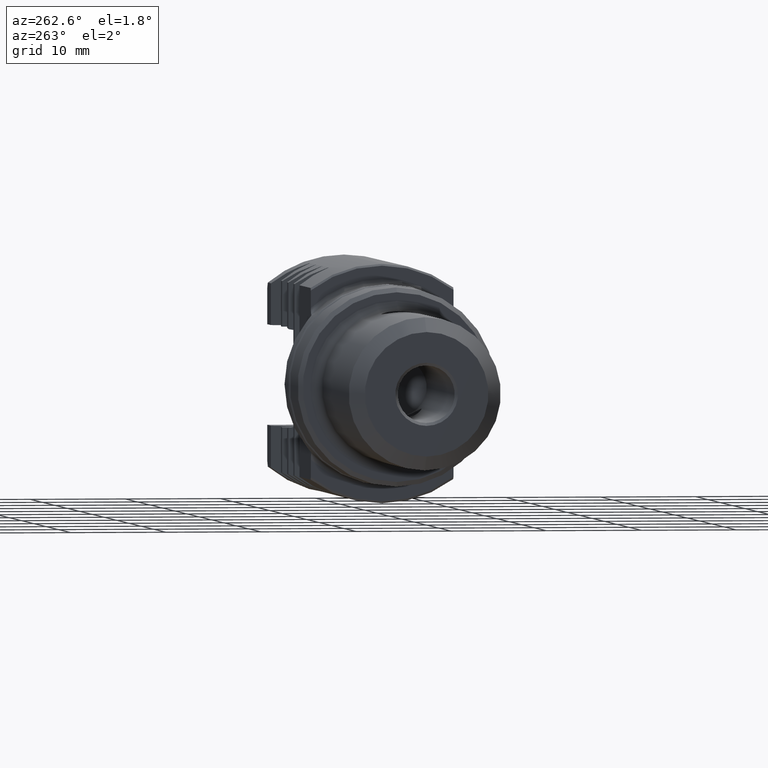
[diagram: clean part render]
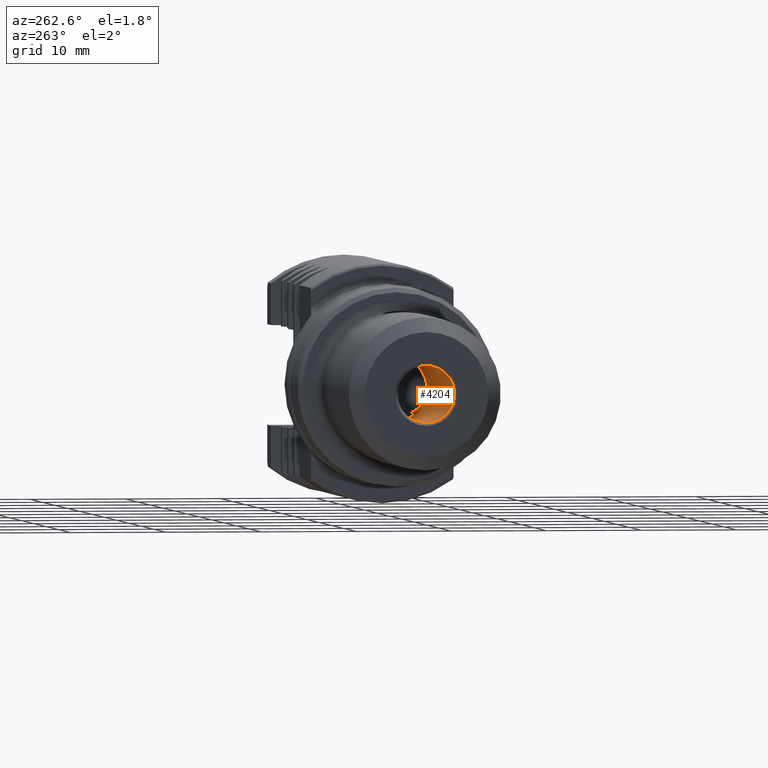
[diagram: same view with one face highlighted and labeled with its STEP entity id]
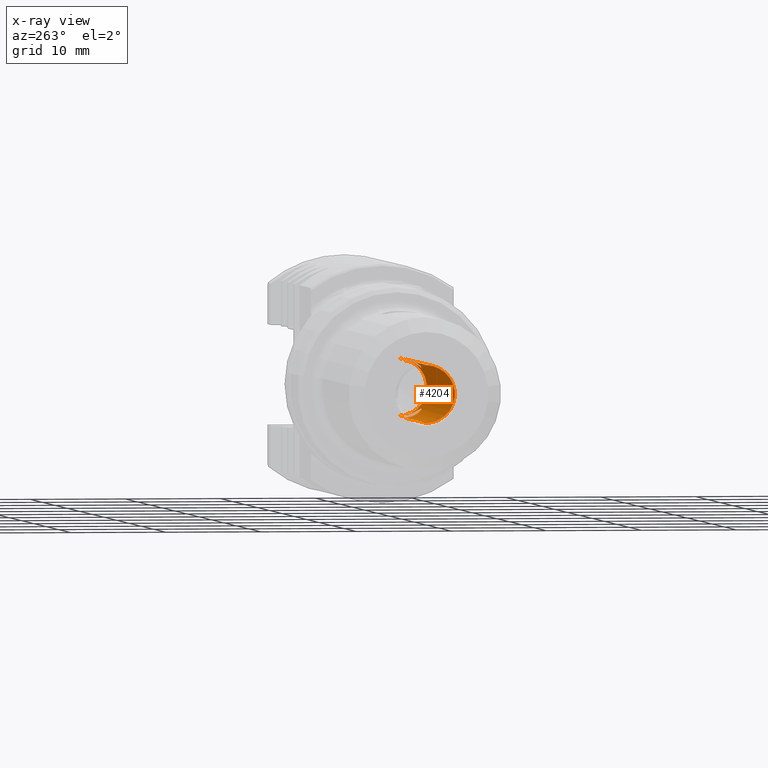
[diagram: x-ray of the same camera — body ghosted, the highlighted face saturated]
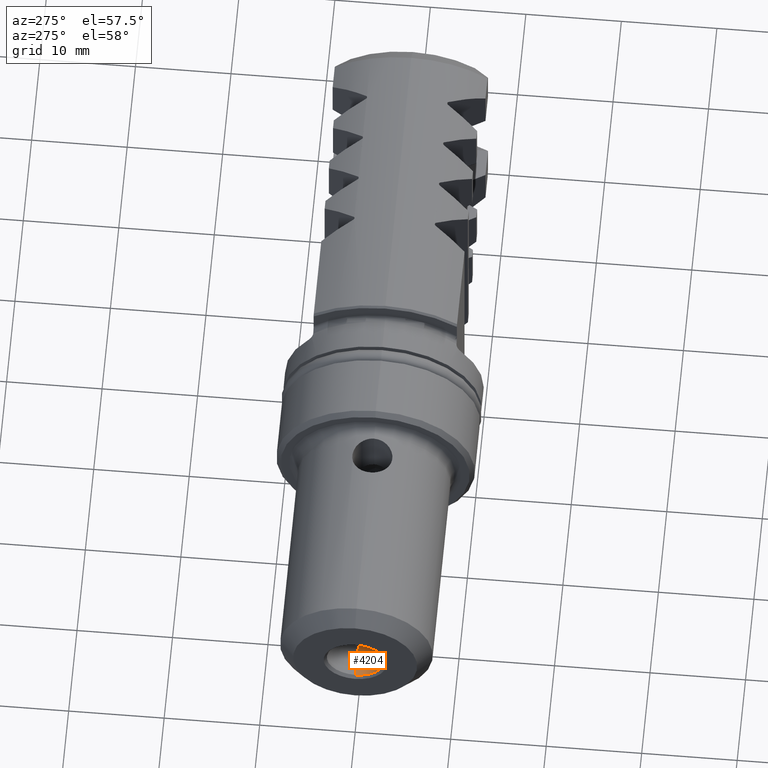
[diagram: same view with one face highlighted and labeled with its STEP entity id]
A machine part, auxiliary view. The second image highlights one B-rep face of the part: STEP entity #4204.
The next image is the same camera in x-ray: the body ghosted, the highlighted face saturated — about 2% of this face is hidden behind the body in this view.
A second angle (auxiliary view) of the same face is appended — the face is thin or edge-on in the first view.
In plain terms, the highlighted cylindrical surface (edge-blend (fillet) strip) has radius 3 mm, axis along (-1, -0, -0).
Its self-contained STEP definition (entity closure, byte-faithful):
#56 = ORIENTED_EDGE ( 'NONE', *, *, #1002, .F. ) ;
#88 = VERTEX_POINT ( 'NONE', #1720 ) ;
#266 = CIRCLE ( 'NONE', #4190, 3.000000000000000000 ) ;
#351 = CARTESIAN_POINT ( 'NONE',  ( -32.53304341604300700, 0.0000000000000000000, 0.0000000000000000000 ) ) ;
#352 = CARTESIAN_POINT ( 'NONE',  ( 21.06223317370697500, -2.028181803002118600, -2.210881140236359500 ) ) ;
#354 = CARTESIAN_POINT ( 'NONE',  ( 21.19604002729298000, -1.985928123216151900, -2.249642511678436700 ) ) ;
#357 = CARTESIAN_POINT ( 'NONE',  ( 21.44562969905857100, -1.879937951750869900, -2.338938912947159800 ) ) ;
#360 = CARTESIAN_POINT ( 'NONE',  ( 21.56213331597550100, -1.816418261317539500, -2.389320187329717200 ) ) ;
#362 = DIRECTION ( 'NONE',  ( -1.000000000000000000, -0.0000000000000000000, -0.0000000000000000000 ) ) ;
#369 = DIRECTION ( 'NONE',  ( 0.0000000000000000000, 0.0000000000000000000, 1.000000000000000000 ) ) ;
#374 = CARTESIAN_POINT ( 'NONE',  ( 23.00000000000000000, 0.0000000000000000000, 3.000000000000000000 ) ) ;
#386 = CARTESIAN_POINT ( 'NONE',  ( 18.41481346290838400, -0.2865876104128588500, -2.989577321527591400 ) ) ;
#399 = CARTESIAN_POINT ( 'NONE',  ( 22.52834534611660500, -0.5618801516370861600, -2.950214118308536200 ) ) ;
#413 = CARTESIAN_POINT ( 'NONE',  ( 18.69012749399731600, -1.073442017937627200, -2.803961141652979700 ) ) ;
#419 = CARTESIAN_POINT ( 'NONE',  ( 18.47232216342964500, -0.5644979574734201300, -2.949753731388872000 ) ) ;
#422 = CARTESIAN_POINT ( 'NONE',  ( 18.62361712955243900, -0.9531508960852199700, -2.847659888849900500 ) ) ;
#435 = CARTESIAN_POINT ( 'NONE',  ( 18.40000000000000900, 3.689340079133780300E-016, -3.000000000000000000 ) ) ;
#438 = CARTESIAN_POINT ( 'NONE',  ( 18.84105998596541200, -1.294540182340183000, -2.708992721673599400 ) ) ;
#444 = CARTESIAN_POINT ( 'NONE',  ( 18.92599802446418900, -1.396550090054431400, -2.657328967437182500 ) ) ;
#447 = CARTESIAN_POINT ( 'NONE',  ( 20.21581941915038200, -2.085500102239848300, -2.156901864500494700 ) ) ;
#463 = EDGE_CURVE ( 'NONE', #4167, #1921, #487, .T. ) ;
#487 = LINE ( 'NONE', #2638, #3702 ) ;
#497 = EDGE_CURVE ( 'NONE', #903, #2813, #2902, .T. ) ;
#516 = CARTESIAN_POINT ( 'NONE',  ( 18.51438615244161700, -0.6976008569386066300, -2.920790392628545000 ) ) ;
#541 = EDGE_CURVE ( 'NONE', #1024, #88, #1251, .T. ) ;
#543 = CARTESIAN_POINT ( 'NONE',  ( 19.93829309410920900, -2.028436499092105100, -2.210651871887361300 ) ) ;
#551 = CARTESIAN_POINT ( 'NONE',  ( 20.35774089761504200, -2.100033747984102500, -2.142395448923665800 ) ) ;
#597 = CARTESIAN_POINT ( 'NONE',  ( 18.40000000000000900, 3.689340079133780300E-016, -3.000000000000000000 ) ) ;
#626 = ORIENTED_EDGE ( 'NONE', *, *, #833, .T. ) ;
#670 = CARTESIAN_POINT ( 'NONE',  ( 19.42916029594665900, -1.827030467856271400, -2.383571231047442000 ) ) ;
#684 = CARTESIAN_POINT ( 'NONE',  ( 19.80675313166017300, -1.986980946083796600, -2.248726251878598400 ) ) ;
#689 = LINE ( 'NONE', #845, #735 ) ;
#735 = VECTOR ( 'NONE', #881, 1000.000000000000000 ) ;
#785 = AXIS2_PLACEMENT_3D ( 'NONE', #3521, #3468, #4040 ) ;
#833 = EDGE_CURVE ( 'NONE', #3259, #1921, #1074, .T. ) ;
#845 = CARTESIAN_POINT ( 'NONE',  ( -32.53304341604300700, 3.673940397442059900E-016, -3.000000000000000000 ) ) ;
#850 = ORIENTED_EDGE ( 'NONE', *, *, #497, .T. ) ;
#880 = CARTESIAN_POINT ( 'NONE',  ( -32.53304341604300700, 0.0000000000000000000, 3.000000000000000000 ) ) ;
#881 = DIRECTION ( 'NONE',  ( -1.000000000000000000, -0.0000000000000000000, -0.0000000000000000000 ) ) ;
#887 = CARTESIAN_POINT ( 'NONE',  ( 19.21037674685318600, -1.678752321526256800, -2.495754039126733200 ) ) ;
#894 = CARTESIAN_POINT ( 'NONE',  ( 18.40000000000000900, -0.1422962251219570000, -3.000000000000000900 ) ) ;
#903 = VERTEX_POINT ( 'NONE', #3578 ) ;
#976 = CARTESIAN_POINT ( 'NONE',  ( 20.64325372563244100, -2.099966134245017100, -2.142461723640594500 ) ) ;
#977 = CARTESIAN_POINT ( 'NONE',  ( 20.78783542600466200, -2.084892883383281600, -2.157484300545312800 ) ) ;
#982 = CARTESIAN_POINT ( 'NONE',  ( 21.88529126540612800, -1.583825113090428800, -2.550107873556759100 ) ) ;
#996 = CARTESIAN_POINT ( 'NONE',  ( 22.32295309483203700, -1.078388264039633400, -2.811882717673427100 ) ) ;
#997 = CARTESIAN_POINT ( 'NONE',  ( 21.78169450476236000, -1.668760521289653700, -2.494687271025013900 ) ) ;
#1002 = EDGE_CURVE ( 'NONE', #3259, #88, #3912, .T. ) ;
#1024 = VERTEX_POINT ( 'NONE', #1595 ) ;
#1054 = FACE_OUTER_BOUND ( 'NONE', #1614, .T. ) ;
#1074 = B_SPLINE_CURVE_WITH_KNOTS ( 'NONE', 3,
 ( #3650, #3648, #1601, #3661, #3665, #3671, #3673, #3685, #3678, #3698, #3694, #3703, #3701, #3707, #3710, #3732, #3742, #3748, #3749, #3751, #3760, #3761, #3769, #3763, #3775, #3776, #3783, #3780, #1413, #3736 ),
 .UNSPECIFIED., .F., .F.,
 ( 4, 2, 2, 2, 2, 2, 2, 2, 2, 2, 2, 2, 2, 2, 4 ),
 ( 0.006821151396801342800, 0.007246910632959694700, 0.007672669869118047500, 0.008524188341434747000, 0.008949947577593094600, 0.009375706813751440500, 0.009801466049909786400, 0.01022722528606813400, 0.01065298452222648000, 0.01107874375838482600, 0.01193026223070151000, 0.01235602146685985600, 0.01278178070301820200, 0.01320753993917654800, 0.01363329917533489400 ),
 .UNSPECIFIED. ) ;
#1213 = CYLINDRICAL_SURFACE ( 'NONE', #3606, 3.000000000000000000 ) ;
#1251 = CIRCLE ( 'NONE', #785, 3.000000000000000000 ) ;
#1413 = CARTESIAN_POINT ( 'NONE',  ( 22.60000000000000500, -0.1442390724335351500, 2.999999999999999100 ) ) ;
#1595 = CARTESIAN_POINT ( 'NONE',  ( 0.3000000000000016500, 3.857637417314162700E-016, -3.000000000000000000 ) ) ;
#1601 = CARTESIAN_POINT ( 'NONE',  ( 18.41474234392690300, -0.2860537666419295500, 2.989627151167781400 ) ) ;
#1614 = EDGE_LOOP ( 'NONE', ( #2759, #850, #2419, #3719, #1945, #56, #626, #3122 ) ) ;
#1691 = EDGE_CURVE ( 'NONE', #2813, #4034, #1796, .T. ) ;
#1720 = CARTESIAN_POINT ( 'NONE',  ( 0.3000000000000016500, 0.0000000000000000000, 3.000000000000000000 ) ) ;
#1796 = B_SPLINE_CURVE_WITH_KNOTS ( 'NONE', 3,
 ( #2583, #2796, #3226, #399, #3156, #996, #2791, #982, #997, #360, #357, #354, #352, #977, #976, #551, #447, #543, #684, #670, #887, #444, #438, #413, #422, #516, #419, #386, #894, #435 ),
 .UNSPECIFIED., .F., .F.,
 ( 4, 2, 2, 2, 2, 2, 2, 2, 2, 2, 2, 2, 2, 2, 4 ),
 ( 1.758758203051513000E-020, 0.0004263219623000870700, 0.0008526439246001741400, 0.001705287849200347800, 0.002131609811500431500, 0.002557931773800515300, 0.002984253736100599400, 0.003410575698400683500, 0.003836897660700767200, 0.004263219623000850900, 0.005115863547601019200, 0.005542185509901101200, 0.005968507472201181400, 0.006394829434501262500, 0.006821151396801342800 ),
 .UNSPECIFIED. ) ;
#1832 = VECTOR ( 'NONE', #2611, 1000.000000000000000 ) ;
#1890 = CARTESIAN_POINT ( 'NONE',  ( 18.40000000000000900, -1.539968164452045400E-018, 3.000000000000000000 ) ) ;
#1921 = VERTEX_POINT ( 'NONE', #2866 ) ;
#1945 = ORIENTED_EDGE ( 'NONE', *, *, #541, .T. ) ;
#2285 = DIRECTION ( 'NONE',  ( -1.000000000000000000, -0.0000000000000000000, -0.0000000000000000000 ) ) ;
#2419 = ORIENTED_EDGE ( 'NONE', *, *, #1691, .T. ) ;
#2426 = EDGE_CURVE ( 'NONE', #903, #4167, #266, .T. ) ;
#2506 = CARTESIAN_POINT ( 'NONE',  ( 22.60000000000001200, 1.816713030219346500E-017, -3.000000000000000000 ) ) ;
#2583 = CARTESIAN_POINT ( 'NONE',  ( 22.60000000000001200, 1.816713030219346500E-017, -3.000000000000000000 ) ) ;
#2604 = CARTESIAN_POINT ( 'NONE',  ( -32.53304341604300700, 3.673940397442059900E-016, -3.000000000000000000 ) ) ;
#2611 = DIRECTION ( 'NONE',  ( -1.000000000000000000, -0.0000000000000000000, -0.0000000000000000000 ) ) ;
#2638 = CARTESIAN_POINT ( 'NONE',  ( -32.53304341604300700, 0.0000000000000000000, 3.000000000000000000 ) ) ;
#2759 = ORIENTED_EDGE ( 'NONE', *, *, #2426, .F. ) ;
#2791 = CARTESIAN_POINT ( 'NONE',  ( 22.16725112077533000, -1.303997398670313700, -2.710313525551866700 ) ) ;
#2796 = CARTESIAN_POINT ( 'NONE',  ( 22.60000000000001200, -0.1444297132695407900, -3.000000000000000000 ) ) ;
#2813 = VERTEX_POINT ( 'NONE', #2506 ) ;
#2866 = CARTESIAN_POINT ( 'NONE',  ( 22.60000000000001200, -1.816713030219346500E-017, 3.000000000000000000 ) ) ;
#2902 = LINE ( 'NONE', #2604, #1832 ) ;
#3089 = VECTOR ( 'NONE', #2285, 1000.000000000000000 ) ;
#3122 = ORIENTED_EDGE ( 'NONE', *, *, #463, .F. ) ;
#3156 = CARTESIAN_POINT ( 'NONE',  ( 22.48543835952498400, -0.6978927775961285600, -2.920675792940975200 ) ) ;
#3226 = CARTESIAN_POINT ( 'NONE',  ( 22.58526567466221700, -0.2855892399796253800, -2.989633996775958200 ) ) ;
#3259 = VERTEX_POINT ( 'NONE', #1890 ) ;
#3468 = DIRECTION ( 'NONE',  ( -1.000000000000000000, -0.0000000000000000000, -0.0000000000000000000 ) ) ;
#3491 = DIRECTION ( 'NONE',  ( 0.0000000000000000000, 0.0000000000000000000, 1.000000000000000000 ) ) ;
#3508 = CARTESIAN_POINT ( 'NONE',  ( 23.00000000000000000, 0.0000000000000000000, 0.0000000000000000000 ) ) ;
#3518 = DIRECTION ( 'NONE',  ( -1.000000000000000000, -0.0000000000000000000, -0.0000000000000000000 ) ) ;
#3521 = CARTESIAN_POINT ( 'NONE',  ( 0.3000000000000016500, 0.0000000000000000000, 0.0000000000000000000 ) ) ;
#3578 = CARTESIAN_POINT ( 'NONE',  ( 23.00000000000000000, 3.673940397442059900E-016, -3.000000000000000000 ) ) ;
#3604 = DIRECTION ( 'NONE',  ( -1.000000000000000000, -0.0000000000000000000, -0.0000000000000000000 ) ) ;
#3606 = AXIS2_PLACEMENT_3D ( 'NONE', #351, #362, #369 ) ;
#3648 = CARTESIAN_POINT ( 'NONE',  ( 18.40000000000000600, -0.1421084003959804700, 3.000000000000000000 ) ) ;
#3650 = CARTESIAN_POINT ( 'NONE',  ( 18.40000000000000900, -1.539968164452045400E-018, 3.000000000000000000 ) ) ;
#3661 = CARTESIAN_POINT ( 'NONE',  ( 18.47216272233820100, -0.5639168599595841800, 2.949863562177570000 ) ) ;
#3665 = CARTESIAN_POINT ( 'NONE',  ( 18.51420145349112900, -0.6971099352430562000, 2.920915482800096300 ) ) ;
#3671 = CARTESIAN_POINT ( 'NONE',  ( 18.67819123729671200, -1.080946505921095200, 2.811119479716319700 ) ) ;
#3673 = CARTESIAN_POINT ( 'NONE',  ( 18.83410022088289200, -1.305741404764338800, 2.709466854059922700 ) ) ;
#3678 = CARTESIAN_POINT ( 'NONE',  ( 19.21830452767726500, -1.668824576423618700, 2.494663248583872200 ) ) ;
#3685 = CARTESIAN_POINT ( 'NONE',  ( 19.11645817829990400, -1.585357278392276700, 2.549153803164879500 ) ) ;
#3694 = CARTESIAN_POINT ( 'NONE',  ( 19.55808266395571900, -1.881782377740912200, 2.337443621867397500 ) ) ;
#3698 = CARTESIAN_POINT ( 'NONE',  ( 19.43927815869968300, -1.817302376060878000, 2.388667466323849200 ) ) ;
#3701 = CARTESIAN_POINT ( 'NONE',  ( 19.94052175260104700, -2.029005416732413600, 2.210123927157646100 ) ) ;
#3702 = VECTOR ( 'NONE', #3604, 1000.000000000000000 ) ;
#3703 = CARTESIAN_POINT ( 'NONE',  ( 19.80739833558758900, -1.987112508030216600, 2.248584328642063900 ) ) ;
#3707 = CARTESIAN_POINT ( 'NONE',  ( 20.21677239076020200, -2.085584093678889900, 2.156814721462605000 ) ) ;
#3710 = CARTESIAN_POINT ( 'NONE',  ( 20.35790672303068400, -2.100168746429551100, 2.142263124203447300 ) ) ;
#3719 = ORIENTED_EDGE ( 'NONE', *, *, #3893, .T. ) ;
#3732 = CARTESIAN_POINT ( 'NONE',  ( 20.64703806945079400, -2.099828342739363100, 2.142596786105552800 ) ) ;
#3736 = CARTESIAN_POINT ( 'NONE',  ( 22.60000000000001200, -1.816713030219346500E-017, 3.000000000000000000 ) ) ;
#3742 = CARTESIAN_POINT ( 'NONE',  ( 20.78845834009623800, -2.084852134545349200, 2.157529098252826100 ) ) ;
#3748 = CARTESIAN_POINT ( 'NONE',  ( 21.06413944101042200, -2.027699023027290400, 2.211329216724665000 ) ) ;
#3749 = CARTESIAN_POINT ( 'NONE',  ( 21.19738579444610200, -1.985431281628958500, 2.250077554019688000 ) ) ;
#3751 = CARTESIAN_POINT ( 'NONE',  ( 21.57069098344905500, -1.826679528386143200, 2.383775868925415600 ) ) ;
#3760 = CARTESIAN_POINT ( 'NONE',  ( 21.79330346019980200, -1.675604246375550700, 2.497746829825767900 ) ) ;
#3761 = CARTESIAN_POINT ( 'NONE',  ( 22.07519315200603000, -1.395111963798066700, 2.658055645121376800 ) ) ;
#3763 = CARTESIAN_POINT ( 'NONE',  ( 22.31222350748762700, -1.069481456828507800, 2.805482794532372400 ) ) ;
#3769 = CARTESIAN_POINT ( 'NONE',  ( 22.16164509377969000, -1.291077151028805900, 2.710653811723019700 ) ) ;
#3775 = CARTESIAN_POINT ( 'NONE',  ( 22.37729572272514000, -0.9512017977455173900, 2.848266505348693700 ) ) ;
#3776 = CARTESIAN_POINT ( 'NONE',  ( 22.48558156722693000, -0.6974883013248623900, 2.920773359067854600 ) ) ;
#3780 = CARTESIAN_POINT ( 'NONE',  ( 22.58521286772785400, -0.2857701544811497900, 2.989597653379330500 ) ) ;
#3783 = CARTESIAN_POINT ( 'NONE',  ( 22.52848974980757300, -0.5612545054211928200, 2.950313896931611600 ) ) ;
#3893 = EDGE_CURVE ( 'NONE', #4034, #1024, #689, .T. ) ;
#3912 = LINE ( 'NONE', #880, #3089 ) ;
#4034 = VERTEX_POINT ( 'NONE', #597 ) ;
#4040 = DIRECTION ( 'NONE',  ( 0.0000000000000000000, 0.0000000000000000000, 1.000000000000000000 ) ) ;
#4167 = VERTEX_POINT ( 'NONE', #374 ) ;
#4190 = AXIS2_PLACEMENT_3D ( 'NONE', #3508, #3518, #3491 ) ;
#4204 = ADVANCED_FACE ( 'NONE', ( #1054 ), #1213, .F. ) ;